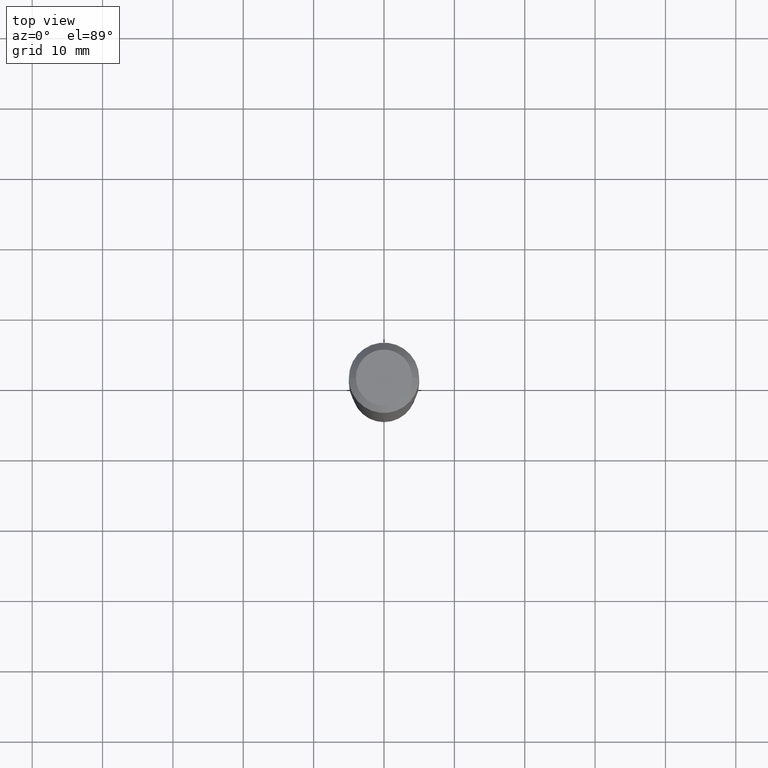
[diagram: clean part render]
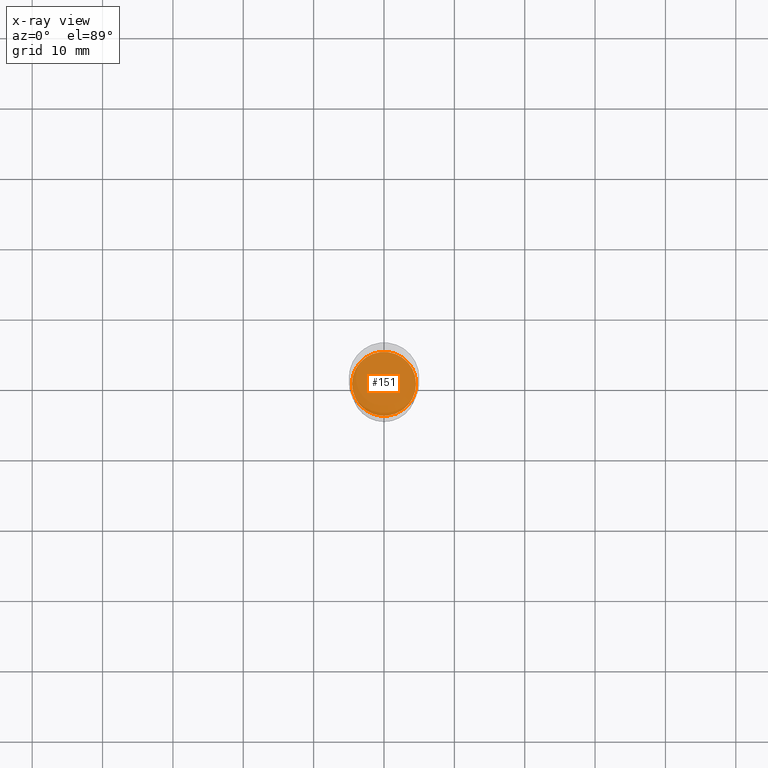
[diagram: x-ray — body ghosted, one internal face saturated and labeled with its STEP entity id]
A machine part, top view, then the same camera in x-ray: the body is ghosted and one INTERNAL B-rep face — a face not visible from any outside direction — is saturated and labeled: STEP entity #151.
In plain terms, the highlighted planar face has unit normal (-0, 0, 1).
Its self-contained STEP definition (entity closure, byte-faithful):
#10 = AXIS2_PLACEMENT_3D ( 'NONE', #332, #336, #286 ) ;
#36 = DIRECTION ( 'NONE',  ( -2.445468806185136597E-29, 3.491481338843145583E-15, 1.000000000000000000 ) ) ;
#80 = AXIS2_PLACEMENT_3D ( 'NONE', #478, #166, #99 ) ;
#99 = DIRECTION ( 'NONE',  ( 1.000000000000000000, -6.982962677686264344E-15, 0.000000000000000000 ) ) ;
#109 = EDGE_CURVE ( 'NONE', #419, #423, #387, .T. ) ;
#151 = ADVANCED_FACE ( 'NONE', ( #405 ), #258, .F. ) ;
#160 = ORIENTED_EDGE ( 'NONE', *, *, #109, .F. ) ;
#166 = DIRECTION ( 'NONE',  ( -2.445468806185136597E-29, 3.491481338843145583E-15, 1.000000000000000000 ) ) ;
#169 = EDGE_LOOP ( 'NONE', ( #418, #160 ) ) ;
#184 = DIRECTION ( 'NONE',  ( 1.000000000000000000, -6.982962677686264344E-15, 0.000000000000000000 ) ) ;
#258 = PLANE ( 'NONE',  #10 ) ;
#286 = DIRECTION ( 'NONE',  ( 1.000000000000000000, -6.982962677686265922E-15, 4.876176775795935793E-29 ) ) ;
#321 = CARTESIAN_POINT ( 'NONE',  ( 0.1791999999999999982, -8.277603958129323177E-15, -2.012399999999999078 ) ) ;
#332 = CARTESIAN_POINT ( 'NONE',  ( 7.063523279905253016E-29, -3.958416140902921557E-15, -2.012399999999999523 ) ) ;
#336 = DIRECTION ( 'NONE',  ( -2.438088387897960049E-29, 3.491481338843145188E-15, 1.000000000000000000 ) ) ;
#367 = CARTESIAN_POINT ( 'NONE',  ( 4.921261425566967159E-29, -7.026257046287943665E-15, -2.012399999999999078 ) ) ;
#387 = CIRCLE ( 'NONE', #395, 0.1791999999999999982 ) ;
#395 = AXIS2_PLACEMENT_3D ( 'NONE', #367, #36, #184 ) ;
#405 = FACE_OUTER_BOUND ( 'NONE', #169, .T. ) ;
#413 = CIRCLE ( 'NONE', #80, 0.1791999999999999982 ) ;
#418 = ORIENTED_EDGE ( 'NONE', *, *, #477, .F. ) ;
#419 = VERTEX_POINT ( 'NONE', #439 ) ;
#423 = VERTEX_POINT ( 'NONE', #321 ) ;
#439 = CARTESIAN_POINT ( 'NONE',  ( -0.1791999999999999982, -5.750315236631734324E-15, -2.012399999999999078 ) ) ;
#477 = EDGE_CURVE ( 'NONE', #423, #419, #413, .T. ) ;
#478 = CARTESIAN_POINT ( 'NONE',  ( 4.921261425566967159E-29, -7.026257046287943665E-15, -2.012399999999999078 ) ) ;